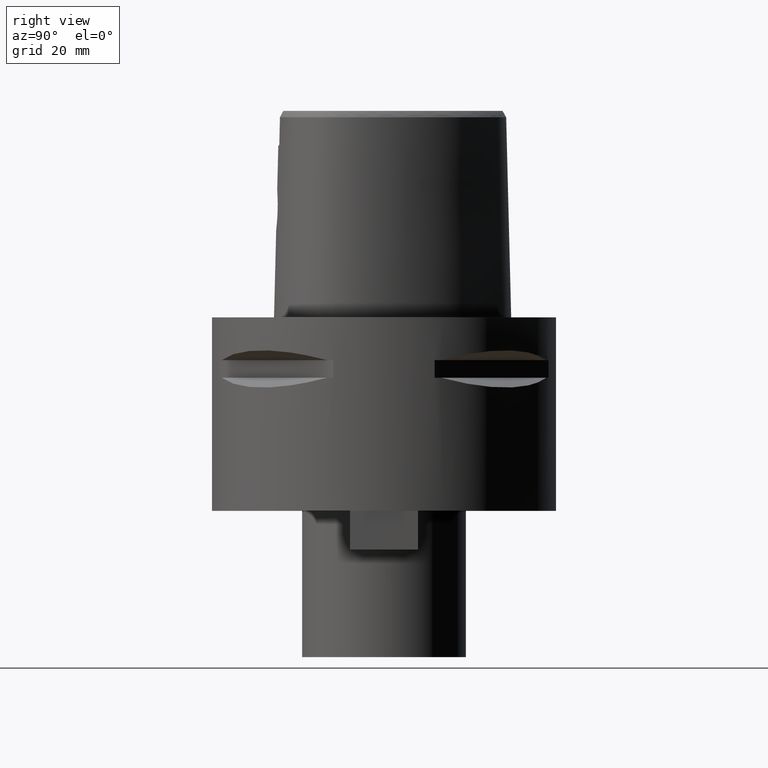
[diagram: clean part render]
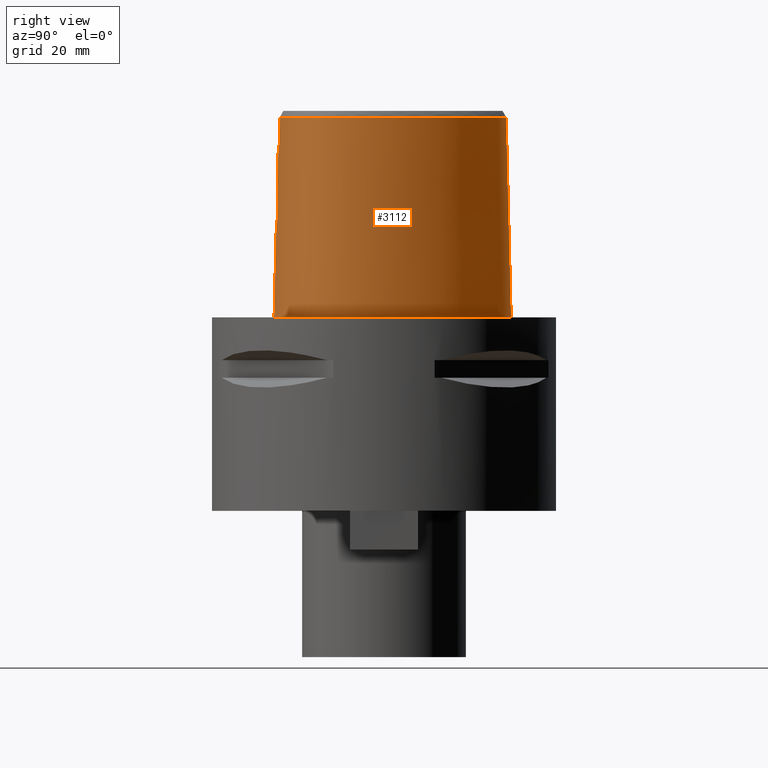
[diagram: same view with one face highlighted and labeled with its STEP entity id]
A machine part, right view. The second image highlights one B-rep face of the part: STEP entity #3112.
In plain terms, the highlighted face is a freeform B-spline surface patch.
Its self-contained STEP definition (entity closure, byte-faithful):
#136=CARTESIAN_POINT('',(4.472216720977E0,-2.420009030094E1,4.652069014669E1));
#146=CARTESIAN_POINT('',(-1.192082389871E-11,2.841206021535E1,
4.652071719451E1));
#147=CARTESIAN_POINT('',(4.307864532616E-1,2.841206021535E1,4.652071719450E1));
#148=CARTESIAN_POINT('',(1.290243686184E0,2.837019130399E1,4.652066945681E1));
#149=CARTESIAN_POINT('',(2.651382969300E0,2.817075131217E1,4.652072173657E1));
#150=CARTESIAN_POINT('',(4.074336725514E0,2.782158805987E1,4.652071662403E1));
#151=CARTESIAN_POINT('',(5.595396641510E0,2.729412342731E1,4.652071792632E1));
#152=CARTESIAN_POINT('',(7.148401170429E0,2.659115128114E1,4.652071612578E1));
#153=CARTESIAN_POINT('',(8.648901433880E0,2.575940722620E1,4.652071983167E1));
#154=CARTESIAN_POINT('',(1.014085376795E1,2.478567019196E1,4.652071087505E1));
#155=CARTESIAN_POINT('',(1.163634389221E1,2.365837475426E1,4.652072134214E1));
#156=CARTESIAN_POINT('',(1.312206139416E1,2.238454939745E1,4.652070894396E1));
#157=CARTESIAN_POINT('',(1.464954312101E1,2.090981865911E1,4.652072249137E1));
#158=CARTESIAN_POINT('',(1.627049443460E1,1.914527469749E1,4.652071424681E1));
#159=CARTESIAN_POINT('',(1.796715023455E1,1.705317788108E1,4.652071595745E1));
#160=CARTESIAN_POINT('',(1.976675591674E1,1.451407693380E1,4.652071286765E1));
#161=CARTESIAN_POINT('',(2.155481495532E1,1.156129316215E1,4.652072225927E1));
#162=CARTESIAN_POINT('',(2.306234486812E1,8.597486850136E0,4.652070049337E1));
#163=CARTESIAN_POINT('',(2.420803968411E1,5.900893542150E0,4.652073260544E1));
#164=CARTESIAN_POINT('',(2.505075205546E1,3.508806534219E0,4.652070587113E1));
#165=CARTESIAN_POINT('',(2.567322114582E1,1.334239622551E0,4.652072040351E1));
#166=CARTESIAN_POINT('',(2.612208390211E1,-6.831609166437E-1,4.652071505202E1));
#167=CARTESIAN_POINT('',(2.642336422375E1,-2.578372535586E0,4.652071650711E1));
#168=CARTESIAN_POINT('',(2.659276820406E1,-4.384275880597E0,4.652072456076E1));
#169=CARTESIAN_POINT('',(2.663583653238E1,-6.135581087396E0,4.652071710227E1));
#170=CARTESIAN_POINT('',(2.654751142963E1,-7.846272567363E0,4.652072628708E1));
#171=CARTESIAN_POINT('',(2.632143472515E1,-9.488605039501E0,4.652071421244E1));
#172=CARTESIAN_POINT('',(2.597174481755E1,-1.099177779397E1,4.652071992217E1));
#173=CARTESIAN_POINT('',(2.551858327167E1,-1.234588235508E1,4.652071412068E1));
#174=CARTESIAN_POINT('',(2.497559107320E1,-1.356602454549E1,4.652075669904E1));
#175=CARTESIAN_POINT('',(2.433850461759E1,-1.468791980804E1,4.652070695486E1));
#176=CARTESIAN_POINT('',(2.357618928729E1,-1.576858274354E1,4.652071763775E1));
#177=CARTESIAN_POINT('',(2.265471437373E1,-1.684003196701E1,4.652072240142E1));
#178=CARTESIAN_POINT('',(2.155775256317E1,-1.789549174916E1,4.652072060407E1));
#179=CARTESIAN_POINT('',(2.026560008652E1,-1.892662209559E1,4.652071544456E1));
#180=CARTESIAN_POINT('',(1.884589376524E1,-1.987031783692E1,4.652072190080E1));
#181=CARTESIAN_POINT('',(1.732978088980E1,-2.071804177538E1,4.652071539137E1));
#182=CARTESIAN_POINT('',(1.569410989927E1,-2.148812130568E1,4.652072076625E1));
#183=CARTESIAN_POINT('',(1.392111693752E1,-2.218590314739E1,4.652071740261E1));
#184=CARTESIAN_POINT('',(1.198420861573E1,-2.281361203436E1,4.652071708225E1));
#185=CARTESIAN_POINT('',(9.835533378743E0,-2.337079420995E1,4.652070590076E1));
#186=CARTESIAN_POINT('',(7.390616142475E0,-2.385180856250E1,4.652075205461E1));
#187=CARTESIAN_POINT('',(5.484368735454E0,-2.410320139643E1,4.652065282523E1));
#188=CARTESIAN_POINT('',(4.472216720977E0,-2.420009030094E1,4.652069014669E1));
#266=DIRECTION('',(1.388127457203E-9,-2.499239851702E-2,-9.996876412242E-1));
#267=VECTOR('',#266,1.045326522127E1);
#268=CARTESIAN_POINT('',(-1.451045074373E-8,-2.457504746727E1,
4.000000005214E1));
#269=LINE('',#268,#267);
#287=CARTESIAN_POINT('',(-2.392065149245E-12,-2.506378435149E1,2.045E1));
#292=DIRECTION('',(-8.238100128409E-13,-2.499051295404E-2,-9.996876883619E-1));
#293=VECTOR('',#292,2.045638876829E1);
#294=CARTESIAN_POINT('',(-2.392065149245E-12,-2.506378435149E1,2.045E1));
#295=LINE('',#294,#293);
#315=CARTESIAN_POINT('',(-1.924424304313E-11,-2.5575E1,1.155372094293E-13));
#316=CARTESIAN_POINT('',(1.192815725724E0,-2.5575E1,1.155372094293E-13));
#317=CARTESIAN_POINT('',(3.525333228657E0,-2.548902837865E1,
-5.362100550466E-14));
#318=CARTESIAN_POINT('',(6.912794962202E0,-2.511620055117E1,
1.436770512232E-14));
#319=CARTESIAN_POINT('',(1.004492435315E1,-2.453159561776E1,0.E0));
#320=CARTESIAN_POINT('',(1.287380282949E1,-2.377703887026E1,0.E0));
#321=CARTESIAN_POINT('',(1.537573005356E1,-2.289401064462E1,0.E0));
#322=CARTESIAN_POINT('',(1.755643976881E1,-2.191900766141E1,0.E0));
#323=CARTESIAN_POINT('',(1.943841882891E1,-2.087997578850E1,0.E0));
#324=CARTESIAN_POINT('',(2.105084736849E1,-1.979718600223E1,0.E0));
#325=CARTESIAN_POINT('',(2.242534301874E1,-1.868306667433E1,0.E0));
#326=CARTESIAN_POINT('',(2.359109094329E1,-1.754452406428E1,0.E0));
#327=CARTESIAN_POINT('',(2.457382905851E1,-1.638271619074E1,0.E0));
#328=CARTESIAN_POINT('',(2.539227053756E1,-1.520068899452E1,0.E0));
#329=CARTESIAN_POINT('',(2.607693928170E1,-1.396756538950E1,0.E0));
#330=CARTESIAN_POINT('',(2.665682759032E1,-1.263119762170E1,0.E0));
#331=CARTESIAN_POINT('',(2.713656180836E1,-1.115060328627E1,0.E0));
#332=CARTESIAN_POINT('',(2.749951934957E1,-9.519591221399E0,0.E0));
#333=CARTESIAN_POINT('',(2.773136670666E1,-7.710853125324E0,0.E0));
#334=CARTESIAN_POINT('',(2.780878860174E1,-5.703936751694E0,0.E0));
#335=CARTESIAN_POINT('',(2.770322148414E1,-3.479212726506E0,0.E0));
#336=CARTESIAN_POINT('',(2.738089369723E1,-1.023752309014E0,0.E0));
#337=CARTESIAN_POINT('',(2.680614393873E1,1.661664025950E0,0.E0));
#338=CARTESIAN_POINT('',(2.594655056648E1,4.556422055258E0,0.E0));
#339=CARTESIAN_POINT('',(2.478199307268E1,7.609941775508E0,0.E0));
#340=CARTESIAN_POINT('',(2.331396571750E1,1.074090138778E1,0.E0));
#341=CARTESIAN_POINT('',(2.157357885349E1,1.383994949608E1,0.E0));
#342=CARTESIAN_POINT('',(1.964071922401E1,1.675979541266E1,0.E0));
#343=CARTESIAN_POINT('',(1.759830293452E1,1.939965932579E1,0.E0));
#344=CARTESIAN_POINT('',(1.551956908596E1,2.170584097412E1,0.E0));
#345=CARTESIAN_POINT('',(1.346459299477E1,2.365965312222E1,0.E0));
#346=CARTESIAN_POINT('',(1.147338245395E1,2.527229393786E1,0.E0));
#347=CARTESIAN_POINT('',(9.569250150812E0,2.657106652003E1,0.E0));
#348=CARTESIAN_POINT('',(7.761187720046E0,2.759099889454E1,0.E0));
#349=CARTESIAN_POINT('',(6.048888758636E0,2.836737005420E1,0.E0));
#350=CARTESIAN_POINT('',(4.426393701691E0,2.893215534013E1,0.E0));
#351=CARTESIAN_POINT('',(2.883207664130E0,2.931237519293E1,1.357154465270E-14));
#352=CARTESIAN_POINT('',(1.410610542194E0,2.952903631335E1,
-5.064969418105E-14));
#353=CARTESIAN_POINT('',(4.637201618440E-1,2.957499999999E1,
1.091349233207E-13));
#354=CARTESIAN_POINT('',(4.353965930456E-11,2.957499999999E1,
1.091349233207E-13));
#359=CARTESIAN_POINT('',(4.353965930456E-11,2.957499999999E1,
1.091349233207E-13));
#398=CARTESIAN_POINT('',(-1.924424304313E-11,-2.5575E1,1.155372094293E-13));
#943=CARTESIAN_POINT('',(-2.392065149245E-12,-2.506378435149E1,2.045E1));
#944=CARTESIAN_POINT('',(3.954072385960E-1,-2.506378435149E1,2.045E1));
#945=CARTESIAN_POINT('',(1.186753459267E0,-2.505127021271E1,2.055377441387E1));
#946=CARTESIAN_POINT('',(2.293901026105E0,-2.499899038356E1,2.101029884895E1));
#947=CARTESIAN_POINT('',(3.249199742156E0,-2.492423366302E1,2.174038340004E1));
#948=CARTESIAN_POINT('',(3.983109891138E0,-2.484333493048E1,2.269399437273E1));
#949=CARTESIAN_POINT('',(4.444902099457E0,-2.477340454867E1,2.380604644136E1));
#950=CARTESIAN_POINT('',(4.602189725522E0,-2.472804812745E1,2.499792083744E1));
#951=CARTESIAN_POINT('',(4.446334752733E0,-2.471346400510E1,2.618704469361E1));
#952=CARTESIAN_POINT('',(3.988616765539E0,-2.472738510881E1,2.729584248229E1));
#953=CARTESIAN_POINT('',(3.258671858174E0,-2.476043868878E1,2.825013255837E1));
#954=CARTESIAN_POINT('',(2.303887962671E0,-2.479896037678E1,2.898443751551E1));
#955=CARTESIAN_POINT('',(1.191549157684E0,-2.482886762172E1,2.944549741629E1));
#956=CARTESIAN_POINT('',(3.970274391533E-1,-2.483629963748E1,2.955E1));
#957=CARTESIAN_POINT('',(1.372734075423E-14,-2.483629963748E1,2.955E1));
#962=CARTESIAN_POINT('',(4.602925666819E0,-2.435121855888E1,4.000000005215E1));
#963=CARTESIAN_POINT('',(4.588866179295E0,-2.433440439141E1,4.072434907413E1));
#964=CARTESIAN_POINT('',(4.559961371654E0,-2.430022591468E1,4.217314077647E1));
#965=CARTESIAN_POINT('',(4.516393969032E0,-2.424985530019E1,4.434670381198E1));
#966=CARTESIAN_POINT('',(4.487210999458E0,-2.421685509515E1,4.579599754735E1));
#967=CARTESIAN_POINT('',(4.472216720977E0,-2.420009030094E1,4.652069014669E1));
#972=DIRECTION('',(1.191795088135E-12,2.499051293969E-2,-9.996876883622E-1));
#973=VECTOR('',#972,4.653525069487E1);
#974=CARTESIAN_POINT('',(-1.192082389871E-11,2.841206021535E1,
4.652071719451E1));
#975=LINE('',#974,#973);
#979=CARTESIAN_POINT('',(4.602925666819E0,-2.435121855888E1,4.000000005215E1));
#980=CARTESIAN_POINT('',(4.092928303446E0,-2.440134250249E1,4.000000005215E1));
#981=CARTESIAN_POINT('',(3.071957671088E0,-2.448406991541E1,3.999999998262E1));
#982=CARTESIAN_POINT('',(1.536621751535E0,-2.455890147071E1,3.999999998262E1));
#983=CARTESIAN_POINT('',(5.124223333400E-1,-2.457504746727E1,4.000000005214E1));
#984=CARTESIAN_POINT('',(-1.451045074373E-8,-2.457504746727E1,
4.000000005214E1));
#989=CARTESIAN_POINT('',(-1.451045074373E-8,-2.457504746727E1,
4.000000005214E1));
#1608=VERTEX_POINT('',#136);
#1609=VERTEX_POINT('',#962);
#1613=CARTESIAN_POINT('',(-1.192082389871E-11,2.841206021535E1,
4.652071719451E1));
#1614=VERTEX_POINT('',#1613);
#1615=VERTEX_POINT('',#359);
#1616=VERTEX_POINT('',#398);
#1617=VERTEX_POINT('',#989);
#1618=CARTESIAN_POINT('',(1.372734075387E-14,-2.483629963748E1,2.955E1));
#1619=VERTEX_POINT('',#1618);
#1620=VERTEX_POINT('',#287);
#2992=CARTESIAN_POINT('',(-8.532294279150E-1,-2.559082453968E1,
-9.304148271013E-1));
#2993=CARTESIAN_POINT('',(-8.462047034635E-1,-2.518772786763E1,
1.519677550932E1));
#2994=CARTESIAN_POINT('',(-8.391799790120E-1,-2.478463119558E1,
3.132396584574E1));
#2995=CARTESIAN_POINT('',(-8.321552545605E-1,-2.438153452354E1,
4.745115618216E1));
#2996=CARTESIAN_POINT('',(-5.689009027234E-1,-2.559577918660E1,
-9.304148271013E-1));
#2997=CARTESIAN_POINT('',(-5.642169907412E-1,-2.519264550062E1,
1.519677550932E1));
#2998=CARTESIAN_POINT('',(-5.595330787590E-1,-2.478951181463E1,
3.132396584574E1));
#2999=CARTESIAN_POINT('',(-5.548491667768E-1,-2.438637812865E1,
4.745115618216E1));
#3000=CARTESIAN_POINT('',(2.393561154782E0,-2.562160366746E1,
-9.304148271013E-1));
#3001=CARTESIAN_POINT('',(2.373865153472E0,-2.521827228671E1,1.519677550932E1));
#3002=CARTESIAN_POINT('',(2.354169152162E0,-2.481494090595E1,3.132396584574E1));
#3003=CARTESIAN_POINT('',(2.334473150852E0,-2.441160952520E1,4.745115618216E1));
#3004=CARTESIAN_POINT('',(6.695047937708E0,-2.526858195492E1,
-9.304148271013E-1));
#3005=CARTESIAN_POINT('',(6.639625057085E0,-2.486795306978E1,1.519677550932E1));
#3006=CARTESIAN_POINT('',(6.584202176462E0,-2.446732418464E1,3.132396584574E1));
#3007=CARTESIAN_POINT('',(6.528779295839E0,-2.406669529950E1,4.745115618216E1));
#3008=CARTESIAN_POINT('',(1.174634101713E1,-2.415815461941E1,
-9.304148271013E-1));
#3009=CARTESIAN_POINT('',(1.164093420266E1,-2.376831829970E1,1.519677550932E1));
#3010=CARTESIAN_POINT('',(1.153552738819E1,-2.337848198E1,3.132396584574E1));
#3011=CARTESIAN_POINT('',(1.143012057372E1,-2.298864566029E1,4.745115618216E1));
#3012=CARTESIAN_POINT('',(1.530623779919E1,-2.298697011005E1,
-9.304148271013E-1));
#3013=CARTESIAN_POINT('',(1.515935276950E1,-2.261055591086E1,1.519677550932E1));
#3014=CARTESIAN_POINT('',(1.501246773982E1,-2.223414171168E1,3.132396584574E1));
#3015=CARTESIAN_POINT('',(1.486558271013E1,-2.185772751250E1,4.745115618216E1));
#3016=CARTESIAN_POINT('',(1.856135208816E1,-2.147443747462E1,
-9.304148271013E-1));
#3017=CARTESIAN_POINT('',(1.836798840105E1,-2.111923999786E1,1.519677550932E1));
#3018=CARTESIAN_POINT('',(1.817462471394E1,-2.076404252109E1,3.132396584574E1));
#3019=CARTESIAN_POINT('',(1.798126102683E1,-2.040884504433E1,4.745115618216E1));
#3020=CARTESIAN_POINT('',(2.143542293780E1,-1.961750339832E1,
-9.304148271013E-1));
#3021=CARTESIAN_POINT('',(2.119046230565E1,-1.929498355653E1,1.519677550932E1));
#3022=CARTESIAN_POINT('',(2.094550167350E1,-1.897246371473E1,3.132396584574E1));
#3023=CARTESIAN_POINT('',(2.070054104135E1,-1.864994387294E1,4.745115618216E1));
#3024=CARTESIAN_POINT('',(2.344929528786E1,-1.778045352561E1,
-9.304148271013E-1));
#3025=CARTESIAN_POINT('',(2.315870194800E1,-1.749879684225E1,1.519677550932E1));
#3026=CARTESIAN_POINT('',(2.286810860813E1,-1.721714015889E1,3.132396584574E1));
#3027=CARTESIAN_POINT('',(2.257751526827E1,-1.693548347554E1,4.745115618216E1));
#3028=CARTESIAN_POINT('',(2.479336082156E1,-1.613554022971E1,
-9.304148271013E-1));
#3029=CARTESIAN_POINT('',(2.446791212012E1,-1.589630645635E1,1.519677550932E1));
#3030=CARTESIAN_POINT('',(2.414246341868E1,-1.565707268300E1,3.132396584574E1));
#3031=CARTESIAN_POINT('',(2.381701471723E1,-1.541783890964E1,4.745115618216E1));
#3032=CARTESIAN_POINT('',(2.565830880924E1,-1.481383149798E1,
-9.304148271013E-1));
#3033=CARTESIAN_POINT('',(2.530843702480E1,-1.461183292881E1,1.519677550932E1));
#3034=CARTESIAN_POINT('',(2.495856524037E1,-1.440983435965E1,3.132396584574E1));
#3035=CARTESIAN_POINT('',(2.460869345593E1,-1.420783579048E1,4.745115618216E1));
#3036=CARTESIAN_POINT('',(2.637046815344E1,-1.340391020172E1,
-9.304148271013E-1));
#3037=CARTESIAN_POINT('',(2.600056127859E1,-1.324168024688E1,1.519677550932E1));
#3038=CARTESIAN_POINT('',(2.563065440375E1,-1.307945029204E1,3.132396584574E1));
#3039=CARTESIAN_POINT('',(2.526074752891E1,-1.291722033720E1,4.745115618216E1));
#3040=CARTESIAN_POINT('',(2.712297208827E1,-1.141745865781E1,
-9.304148271013E-1));
#3041=CARTESIAN_POINT('',(2.673375356918E1,-1.130662577662E1,1.519677550932E1));
#3042=CARTESIAN_POINT('',(2.634453505010E1,-1.119579289544E1,3.132396584574E1));
#3043=CARTESIAN_POINT('',(2.595531653102E1,-1.108496001425E1,4.745115618216E1));
#3044=CARTESIAN_POINT('',(2.770696776775E1,-8.754869101939E0,
-9.304148271013E-1));
#3045=CARTESIAN_POINT('',(2.730517712620E1,-8.703986959992E0,1.519677550932E1));
#3046=CARTESIAN_POINT('',(2.690338648464E1,-8.653104818045E0,3.132396584574E1));
#3047=CARTESIAN_POINT('',(2.650159584309E1,-8.602222676099E0,4.745115618216E1));
#3048=CARTESIAN_POINT('',(2.787808443978E1,-5.337383713848E0,
-9.304148271013E-1));
#3049=CARTESIAN_POINT('',(2.747379237263E1,-5.347524340482E0,1.519677550932E1));
#3050=CARTESIAN_POINT('',(2.706950030548E1,-5.357664967116E0,3.132396584574E1));
#3051=CARTESIAN_POINT('',(2.666520823834E1,-5.367805593750E0,4.745115618216E1));
#3052=CARTESIAN_POINT('',(2.756041893108E1,-1.762105662438E0,
-9.304148271013E-1));
#3053=CARTESIAN_POINT('',(2.716099284807E1,-1.823107513525E0,1.519677550932E1));
#3054=CARTESIAN_POINT('',(2.676156676506E1,-1.884109364612E0,3.132396584574E1));
#3055=CARTESIAN_POINT('',(2.636214068205E1,-1.945111215699E0,4.745115618216E1));
#3056=CARTESIAN_POINT('',(2.679474626621E1,1.906447389584E0,
-9.304148271013E-1));
#3057=CARTESIAN_POINT('',(2.640443212547E1,1.802817636802E0,1.519677550932E1));
#3058=CARTESIAN_POINT('',(2.601411798472E1,1.699187884020E0,3.132396584574E1));
#3059=CARTESIAN_POINT('',(2.562380384397E1,1.595558131238E0,4.745115618216E1));
#3060=CARTESIAN_POINT('',(2.523075706996E1,6.836210433876E0,
-9.304148271013E-1));
#3061=CARTESIAN_POINT('',(2.485610452160E1,6.683875413351E0,1.519677550932E1));
#3062=CARTESIAN_POINT('',(2.448145197324E1,6.531540392825E0,3.132396584574E1));
#3063=CARTESIAN_POINT('',(2.410679942488E1,6.379205372299E0,4.745115618216E1));
#3064=CARTESIAN_POINT('',(2.235908248529E1,1.290902243491E1,
-9.304148271013E-1));
#3065=CARTESIAN_POINT('',(2.200846680665E1,1.270659189654E1,1.519677550932E1));
#3066=CARTESIAN_POINT('',(2.165785112801E1,1.250416135817E1,3.132396584574E1));
#3067=CARTESIAN_POINT('',(2.130723544936E1,1.230173081981E1,4.745115618216E1));
#3068=CARTESIAN_POINT('',(1.777103259307E1,1.953703865006E1,
-9.304148271013E-1));
#3069=CARTESIAN_POINT('',(1.745811251592E1,1.927961871562E1,1.519677550932E1));
#3070=CARTESIAN_POINT('',(1.714519243877E1,1.902219878119E1,3.132396584574E1));
#3071=CARTESIAN_POINT('',(1.683227236161E1,1.876477884675E1,4.745115618216E1));
#3072=CARTESIAN_POINT('',(1.323332856871E1,2.406149250567E1,
-9.304148271013E-1));
#3073=CARTESIAN_POINT('',(1.296695400558E1,2.375598699065E1,1.519677550932E1));
#3074=CARTESIAN_POINT('',(1.270057944245E1,2.345048147563E1,3.132396584574E1));
#3075=CARTESIAN_POINT('',(1.243420487932E1,2.314497596060E1,4.745115618216E1));
#3076=CARTESIAN_POINT('',(9.316733121848E0,2.681182151389E1,
-9.304148271013E-1));
#3077=CARTESIAN_POINT('',(9.105791391102E0,2.646675902309E1,1.519677550932E1));
#3078=CARTESIAN_POINT('',(8.894849660356E0,2.612169653229E1,3.132396584574E1));
#3079=CARTESIAN_POINT('',(8.683907929610E0,2.577663404150E1,4.745115618216E1));
#3080=CARTESIAN_POINT('',(6.271543173918E0,2.837237221333E1,
-9.304148271013E-1));
#3081=CARTESIAN_POINT('',(6.114741869066E0,2.799897520312E1,1.519677550932E1));
#3082=CARTESIAN_POINT('',(5.957940564214E0,2.762557819292E1,3.132396584574E1));
#3083=CARTESIAN_POINT('',(5.801139259362E0,2.725218118271E1,4.745115618216E1));
#3084=CARTESIAN_POINT('',(3.154109048396E0,2.936302094236E1,
-9.304148271013E-1));
#3085=CARTESIAN_POINT('',(3.067023367714E0,2.896669960819E1,1.519677550932E1));
#3086=CARTESIAN_POINT('',(2.979937687032E0,2.857037827402E1,3.132396584574E1));
#3087=CARTESIAN_POINT('',(2.892852006350E0,2.817405693985E1,4.745115618216E1));
#3088=CARTESIAN_POINT('',(7.484115212476E-1,2.963215902794E1,
-9.304148271013E-1));
#3089=CARTESIAN_POINT('',(7.265635583736E-1,2.922802189345E1,1.519677550932E1));
#3090=CARTESIAN_POINT('',(7.047155954996E-1,2.882388475895E1,3.132396584574E1));
#3091=CARTESIAN_POINT('',(6.828676326255E-1,2.841974762445E1,4.745115618216E1));
#3092=CARTESIAN_POINT('',(-6.060951007331E-1,2.958848806E1,-9.304148271013E-1));
#3093=CARTESIAN_POINT('',(-5.886350937626E-1,2.918561913533E1,
1.519677550932E1));
#3094=CARTESIAN_POINT('',(-5.711750867921E-1,2.878275021066E1,
3.132396584574E1));
#3095=CARTESIAN_POINT('',(-5.537150798215E-1,2.837988128598E1,
4.745115618216E1));
#3096=CARTESIAN_POINT('',(-9.090099850606E-1,2.956867552471E1,
-9.304148271013E-1));
#3097=CARTESIAN_POINT('',(-8.826520943044E-1,2.916640527953E1,
1.519677550932E1));
#3098=CARTESIAN_POINT('',(-8.562942035482E-1,2.876413503436E1,
3.132396584574E1));
#3099=CARTESIAN_POINT('',(-8.299363127920E-1,2.836186478918E1,
4.745115618216E1));
#3100=B_SPLINE_SURFACE_WITH_KNOTS('',3,3,((#2992,#2993,#2994,#2995),(#2996,
#2997,#2998,#2999),(#3000,#3001,#3002,#3003),(#3004,#3005,#3006,#3007),(#3008,
#3009,#3010,#3011),(#3012,#3013,#3014,#3015),(#3016,#3017,#3018,#3019),(#3020,
#3021,#3022,#3023),(#3024,#3025,#3026,#3027),(#3028,#3029,#3030,#3031),(#3032,
#3033,#3034,#3035),(#3036,#3037,#3038,#3039),(#3040,#3041,#3042,#3043),(#3044,
#3045,#3046,#3047),(#3048,#3049,#3050,#3051),(#3052,#3053,#3054,#3055),(#3056,
#3057,#3058,#3059),(#3060,#3061,#3062,#3063),(#3064,#3065,#3066,#3067),(#3068,
#3069,#3070,#3071),(#3072,#3073,#3074,#3075),(#3076,#3077,#3078,#3079),(#3080,
#3081,#3082,#3083),(#3084,#3085,#3086,#3087),(#3088,#3089,#3090,#3091),(#3092,
#3093,#3094,#3095),(#3096,#3097,#3098,#3099)),.UNSPECIFIED.,.F.,.F.,.F.,(4,1,1,
1,1,1,1,1,1,1,1,1,1,1,1,1,1,1,1,1,1,1,1,1,4),(4,4),(-8.851417483051E-3,0.E0,
8.333333333348E-2,1.250000000001E-1,1.666666666668E-1,2.083333333334E-1,2.5E-1,
2.916666666667E-1,3.125E-1,3.333333333333E-1,3.541666666667E-1,3.75E-1,
4.166666666666E-1,4.583333333332E-1,4.999999999999E-1,5.416666666666E-1,
5.833333333331E-1,6.666666666665E-1,7.499999999997E-1,8.333333333330E-1,
8.749999999996E-1,9.166666666663E-1,9.583333333329E-1,1.E0,1.012009199036E0),(
-2.018435460438E-9,1.000000102940E0),.UNSPECIFIED.);
#3101=ORIENTED_EDGE('',*,*,#2533,.F.);
#3102=ORIENTED_EDGE('',*,*,#2517,.F.);
#3103=ORIENTED_EDGE('',*,*,#2984,.T.);
#3104=ORIENTED_EDGE('',*,*,#2513,.F.);
#3106=ORIENTED_EDGE('',*,*,#3105,.F.);
#3107=ORIENTED_EDGE('',*,*,#1814,.T.);
#3108=ORIENTED_EDGE('',*,*,#2106,.F.);
#3109=ORIENTED_EDGE('',*,*,#2507,.T.);
#3110=EDGE_LOOP('',(#3101,#3102,#3103,#3104,#3106,#3107,#3108,#3109));
#3111=FACE_OUTER_BOUND('',#3110,.F.);
#189=B_SPLINE_CURVE_WITH_KNOTS('',3,(#146,#147,#148,#149,#150,#151,#152,#153,
#154,#155,#156,#157,#158,#159,#160,#161,#162,#163,#164,#165,#166,#167,#168,#169,
#170,#171,#172,#173,#174,#175,#176,#177,#178,#179,#180,#181,#182,#183,#184,#185,
#186,#187,#188),.UNSPECIFIED.,.F.,.F.,(4,1,1,1,1,1,1,1,1,1,1,1,1,1,1,1,1,1,1,1,
1,1,1,1,1,1,1,1,1,1,1,1,1,1,1,1,1,1,1,1,4),(0.E0,2.5E-2,5.E-2,7.5E-2,1.E-1,
1.25E-1,1.5E-1,1.75E-1,2.E-1,2.25E-1,2.5E-1,2.75E-1,3.E-1,3.25E-1,3.5E-1,
3.75E-1,4.E-1,4.25E-1,4.5E-1,4.75E-1,5.E-1,5.25E-1,5.5E-1,5.75E-1,6.E-1,6.25E-1,
6.5E-1,6.75E-1,7.E-1,7.25E-1,7.5E-1,7.75E-1,8.E-1,8.25E-1,8.5E-1,8.75E-1,9.E-1,
9.25E-1,9.5E-1,9.75E-1,1.E0),.UNSPECIFIED.);
#355=B_SPLINE_CURVE_WITH_KNOTS('',3,(#315,#316,#317,#318,#319,#320,#321,#322,
#323,#324,#325,#326,#327,#328,#329,#330,#331,#332,#333,#334,#335,#336,#337,#338,
#339,#340,#341,#342,#343,#344,#345,#346,#347,#348,#349,#350,#351,#352,#353,
#354),.UNSPECIFIED.,.F.,.F.,(4,1,1,1,1,1,1,1,1,1,1,1,1,1,1,1,1,1,1,1,1,1,1,1,1,
1,1,1,1,1,1,1,1,1,1,1,1,4),(0.E0,2.702702702703E-2,5.405405405405E-2,
8.108108108108E-2,1.081081081081E-1,1.351351351351E-1,1.621621621622E-1,
1.891891891892E-1,2.162162162162E-1,2.432432432432E-1,2.702702702703E-1,
2.972972972973E-1,3.243243243243E-1,3.513513513514E-1,3.783783783784E-1,
4.054054054054E-1,4.324324324324E-1,4.594594594595E-1,4.864864864865E-1,
5.135135135135E-1,5.405405405405E-1,5.675675675676E-1,5.945945945946E-1,
6.216216216216E-1,6.486486486486E-1,6.756756756757E-1,7.027027027027E-1,
7.297297297297E-1,7.567567567568E-1,7.837837837838E-1,8.108108108108E-1,
8.378378378378E-1,8.648648648649E-1,8.918918918919E-1,9.189189189189E-1,
9.459459459459E-1,9.729729729730E-1,1.E0),.UNSPECIFIED.);
#958=B_SPLINE_CURVE_WITH_KNOTS('',3,(#943,#944,#945,#946,#947,#948,#949,#950,
#951,#952,#953,#954,#955,#956,#957),.UNSPECIFIED.,.F.,.F.,(4,1,1,1,1,1,1,1,1,1,
1,1,4),(0.E0,8.333333333333E-2,1.666666666667E-1,2.5E-1,3.333333333333E-1,
4.166666666667E-1,5.E-1,5.833333333333E-1,6.666666666667E-1,7.5E-1,
8.333333333333E-1,9.166666666667E-1,1.E0),.UNSPECIFIED.);
#968=B_SPLINE_CURVE_WITH_KNOTS('',3,(#962,#963,#964,#965,#966,#967),
.UNSPECIFIED.,.F.,.F.,(4,1,1,4),(0.E0,3.333333333333E-1,6.666666666667E-1,1.E0),
.UNSPECIFIED.);
#985=B_SPLINE_CURVE_WITH_KNOTS('',3,(#979,#980,#981,#982,#983,#984),
.UNSPECIFIED.,.F.,.F.,(4,1,1,4),(0.E0,3.333333333333E-1,6.666666666667E-1,1.E0),
.UNSPECIFIED.);
#1814=EDGE_CURVE('',#1609,#1608,#968,.T.);
#2106=EDGE_CURVE('',#1614,#1608,#189,.T.);
#2507=EDGE_CURVE('',#1614,#1615,#975,.T.);
#2513=EDGE_CURVE('',#1617,#1619,#269,.T.);
#2517=EDGE_CURVE('',#1620,#1616,#295,.T.);
#2533=EDGE_CURVE('',#1616,#1615,#355,.T.);
#2984=EDGE_CURVE('',#1620,#1619,#958,.T.);
#3105=EDGE_CURVE('',#1609,#1617,#985,.T.);
#3112=ADVANCED_FACE('',(#3111),#3100,.T.);